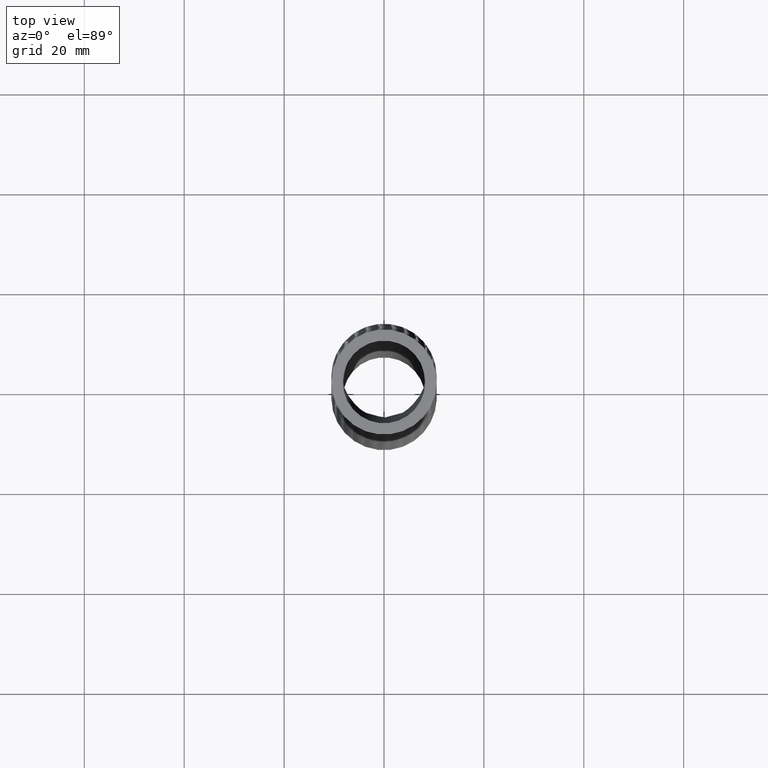
[diagram: clean part render]
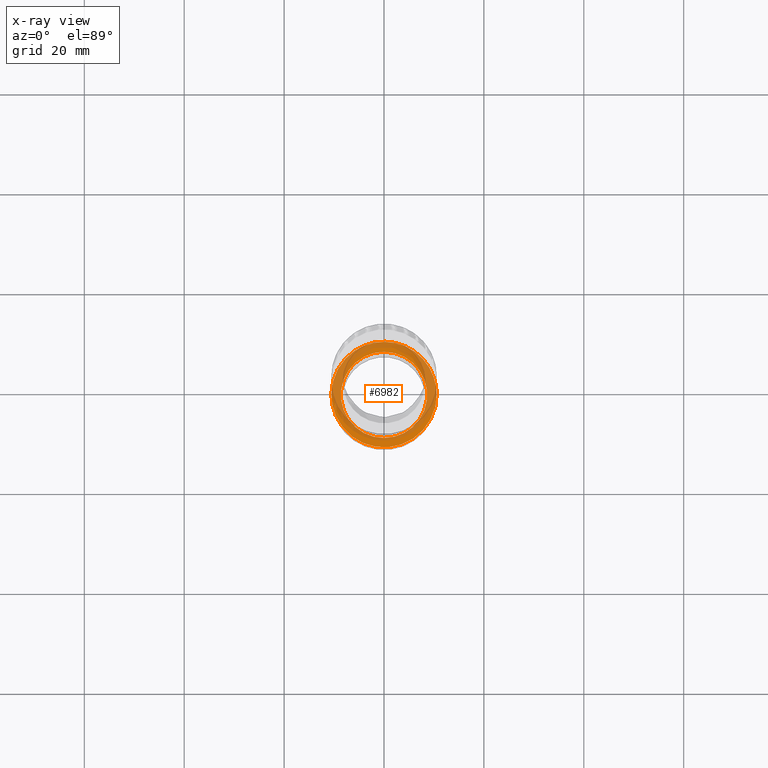
[diagram: x-ray — body ghosted, one internal face saturated and labeled with its STEP entity id]
A machine part, top view, then the same camera in x-ray: the body is ghosted and one INTERNAL B-rep face — a face not visible from any outside direction — is saturated and labeled: STEP entity #6982.
In plain terms, the highlighted planar face has unit normal (0, -0, 1).
Its self-contained STEP definition (entity closure, byte-faithful):
#414 = VERTEX_POINT ( 'NONE', #18589 ) ;
#418 = EDGE_CURVE ( 'NONE', #414, #425, #18704, .T. ) ;
#425 = VERTEX_POINT ( 'NONE', #18724 ) ;
#443 = EDGE_CURVE ( 'NONE', #425, #414, #18524, .T. ) ;
#4816 = CARTESIAN_POINT ( 'NONE',  ( 0.0000000000000000000, -0.3491710639990551800, -5.315553185463556900 ) ) ;
#4846 = CARTESIAN_POINT ( 'NONE',  ( 0.0000000000000000000, -0.009171063999055175500, -5.315553185463556900 ) ) ;
#4847 = AXIS2_PLACEMENT_3D ( 'NONE', #4846, #4907, #4906 ) ;
#4848 = CIRCLE ( 'NONE', #4847, 0.3399999999999999700 ) ;
#4849 = CARTESIAN_POINT ( 'NONE',  ( 4.163799117101000900E-017, 0.3308289360009448200, -5.315553185463556900 ) ) ;
#4906 = DIRECTION ( 'NONE',  ( 0.0000000000000000000, -1.000000000000000000, 0.0000000000000000000 ) ) ;
#4907 = DIRECTION ( 'NONE',  ( 0.0000000000000000000, -1.734723475976807100E-018, 1.000000000000000000 ) ) ;
#6959 = EDGE_LOOP ( 'NONE', ( #6960, #6961 ) ) ;
#6960 = ORIENTED_EDGE ( 'NONE', *, *, #418, .F. ) ;
#6961 = ORIENTED_EDGE ( 'NONE', *, *, #443, .F. ) ;
#6962 = EDGE_LOOP ( 'NONE', ( #6963, #6964 ) ) ;
#6963 = ORIENTED_EDGE ( 'NONE', *, *, #18904, .F. ) ;
#6964 = ORIENTED_EDGE ( 'NONE', *, *, #6979, .F. ) ;
#6979 = EDGE_CURVE ( 'NONE', #18892, #18829, #14181, .T. ) ;
#6982 = ADVANCED_FACE ( 'NONE', ( #14177, #14176 ), #14203, .T. ) ;
#14176 = FACE_BOUND ( 'NONE', #6962, .T. ) ;
#14177 = FACE_OUTER_BOUND ( 'NONE', #6959, .T. ) ;
#14178 = DIRECTION ( 'NONE',  ( 0.0000000000000000000, -1.000000000000000000, 0.0000000000000000000 ) ) ;
#14179 = DIRECTION ( 'NONE',  ( 0.0000000000000000000, -1.734723475976807100E-018, 1.000000000000000000 ) ) ;
#14180 = AXIS2_PLACEMENT_3D ( 'NONE', #14187, #14179, #14178 ) ;
#14181 = CIRCLE ( 'NONE', #14180, 0.3399999999999999700 ) ;
#14187 = CARTESIAN_POINT ( 'NONE',  ( 0.0000000000000000000, -0.009171063999055175500, -5.315553185463556900 ) ) ;
#14199 = DIRECTION ( 'NONE',  ( 0.0000000000000000000, -1.000000000000000000, -1.734723475976807100E-018 ) ) ;
#14200 = DIRECTION ( 'NONE',  ( 0.0000000000000000000, -1.734723475976807100E-018, 1.000000000000000000 ) ) ;
#14201 = CARTESIAN_POINT ( 'NONE',  ( 0.0000000000000000000, 0.4308289360009448500, -5.315553185463556900 ) ) ;
#14202 = AXIS2_PLACEMENT_3D ( 'NONE', #14201, #14200, #14199 ) ;
#14203 = PLANE ( 'NONE',  #14202 ) ;
#18518 = CARTESIAN_POINT ( 'NONE',  ( -0.4044508099036629400, 0.08752687375904459600, -5.315553185463556900 ) ) ;
#18519 = CARTESIAN_POINT ( 'NONE',  ( -0.4123830496926111900, 0.04735248237020928800, -5.315553185463555200 ) ) ;
#18520 = CARTESIAN_POINT ( 'NONE',  ( -0.4149999999999999200, 0.02040056874659865900, -5.315553185463553400 ) ) ;
#18521 = CARTESIAN_POINT ( 'NONE',  ( -0.4150000000000000400, -0.006716898360299174800, -5.315553185463551600 ) ) ;
#18524 = B_SPLINE_CURVE_WITH_KNOTS ( 'NONE', 3,
 ( #18521, #18520, #18519, #18518, #18759, #18758, #18757, #18756, #18755, #18754, #18753, #18752, #18824, #18823, #18822, #18821, #18819, #18818, #18817, #18816, #18815, #18814, #18813, #18812, #18811, #18810, #18809, #18808, #18807, #18806, #18805, #18804, #18803, #18802, #18801, #18800, #18799, #18798, #18797, #18796, #18795, #18794, #18793, #18792, #18791, #18790 ),
 .UNSPECIFIED., .F., .F.,
 ( 4, 2, 2, 1, 2, 2, 2, 2, 2, 2, 2, 2, 2, 2, 1, 2, 2, 2, 2, 2, 2, 2, 2, 4 ),
 ( 0.03300452537414134300, 0.03506674712693315400, 0.03609785800332905600, 0.03712896887972496500, 0.03816007975612086700, 0.03919119063251677600, 0.04125341238530858000, 0.04228452326170448200, 0.04331563413810038400, 0.04537785589089219500, 0.04640896676728810400, 0.04744007764368400600, 0.04950229939647582400, 0.05053341027287172600, 0.05156452114926762800, 0.05259563202566353700, 0.05362674290205944600, 0.05568896465485125700, 0.05775118640764306800, 0.05981340816043488600, 0.06084451903683079500, 0.06187562991322670400, 0.06393785166601850800, 0.06600007341881032600 ),
 .UNSPECIFIED. ) ;
#18589 = CARTESIAN_POINT ( 'NONE',  ( 0.4150000000000000400, -0.006716898360302324200, -5.315553185463572900 ) ) ;
#18683 = CARTESIAN_POINT ( 'NONE',  ( 0.1338196370977037000, -0.4009658393856636600, -5.315553185463558700 ) ) ;
#18684 = CARTESIAN_POINT ( 'NONE',  ( 0.1593125964116159400, -0.3917881290928181800, -5.315553185463557800 ) ) ;
#18685 = CARTESIAN_POINT ( 'NONE',  ( 0.1838035545057550300, -0.3801605982862669700, -5.315553185463563100 ) ) ;
#18686 = CARTESIAN_POINT ( 'NONE',  ( 0.2077856405299724800, -0.3672889120723623100, -5.315553185463564900 ) ) ;
#18687 = CARTESIAN_POINT ( 'NONE',  ( 0.2195853218385347700, -0.3601855300967235500, -5.315553185463558700 ) ) ;
#18688 = CARTESIAN_POINT ( 'NONE',  ( 0.2536006523998172200, -0.3373362361086627000, -5.315553185463556900 ) ) ;
#18689 = CARTESIAN_POINT ( 'NONE',  ( 0.2744861531702941800, -0.3200879583960537500, -5.315553185463555200 ) ) ;
#18690 = CARTESIAN_POINT ( 'NONE',  ( 0.3031901270485034000, -0.2912630753389501800, -5.315553185463556900 ) ) ;
#18691 = CARTESIAN_POINT ( 'NONE',  ( 0.3123176094933678400, -0.2811591825899336100, -5.315553185463556000 ) ) ;
#18692 = CARTESIAN_POINT ( 'NONE',  ( 0.3296631670194592500, -0.2599282602502763200, -5.315553185463553400 ) ) ;
#18693 = CARTESIAN_POINT ( 'NONE',  ( 0.3377861522118279500, -0.2489111636180513800, -5.315553185463557800 ) ) ;
#18694 = CARTESIAN_POINT ( 'NONE',  ( 0.3603353593130777500, -0.2149848402440439100, -5.315553185463558700 ) ) ;
#18695 = CARTESIAN_POINT ( 'NONE',  ( 0.3730588678288916400, -0.1910874090227761600, -5.315553185463558700 ) ) ;
#18697 = CARTESIAN_POINT ( 'NONE',  ( 0.3886501885635342300, -0.1533048130875107300, -5.315553185463557800 ) ) ;
#18698 = CARTESIAN_POINT ( 'NONE',  ( 0.3932762093665784800, -0.1403191837539575800, -5.315553185463561400 ) ) ;
#18699 = CARTESIAN_POINT ( 'NONE',  ( 0.4011554534423831800, -0.1142003221586453000, -5.315553185463563100 ) ) ;
#18700 = CARTESIAN_POINT ( 'NONE',  ( 0.4044320417009310000, -0.1010280381391188400, -5.315553185463550700 ) ) ;
#18701 = CARTESIAN_POINT ( 'NONE',  ( 0.4123171183503283000, -0.06118018586997146100, -5.315553185463551600 ) ) ;
#18702 = CARTESIAN_POINT ( 'NONE',  ( 0.4150000000000000400, -0.03417686520175025600, -5.315553185463574700 ) ) ;
#18703 = CARTESIAN_POINT ( 'NONE',  ( 0.4150000000000000400, -0.006716898360302324200, -5.315553185463572900 ) ) ;
#18704 = B_SPLINE_CURVE_WITH_KNOTS ( 'NONE', 3,
 ( #18703, #18702, #18701, #18700, #18699, #18698, #18697, #18695, #18694, #18693, #18692, #18691, #18690, #18689, #18688, #18687, #18686, #18685, #18684, #18683, #18751, #18750, #18749, #18748, #18747, #18746, #18745, #18744, #18743, #18742, #18741, #18740, #18739, #18738, #18737, #18736, #18735, #18734, #18733, #18732, #18731, #18730, #18729, #18728, #18727, #18726, #18725 ),
 .UNSPECIFIED., .F., .F.,
 ( 4, 2, 2, 2, 2, 2, 2, 2, 2, 1, 2, 2, 2, 2, 2, 2, 2, 2, 2, 2, 2, 2, 2, 4 ),
 ( 0.0000000000000000000, 0.002062782835883827800, 0.003094174253825742400, 0.004125565671767657400, 0.006188348507651487500, 0.007219739925593403300, 0.008251131343535318300, 0.01031391417941915500, 0.01134530559736107400, 0.01237669701530299200, 0.01340808843324491100, 0.01443947985118682700, 0.01650226268707066100, 0.01753365410501257800, 0.01856504552295449400, 0.02062782835883832800, 0.02165921977678024500, 0.02269061119472216100, 0.02475339403060599500, 0.02681617686648983500, 0.02784756828443175200, 0.02887895970237366900, 0.03094174253825750600, 0.03300452537414134300 ),
 .UNSPECIFIED. ) ;
#18724 = CARTESIAN_POINT ( 'NONE',  ( -0.4150000000000000400, -0.006716898360299174800, -5.315553185463551600 ) ) ;
#18725 = CARTESIAN_POINT ( 'NONE',  ( -0.4150000000000000400, -0.006716898360299174800, -5.315553185463551600 ) ) ;
#18726 = CARTESIAN_POINT ( 'NONE',  ( -0.4150000000000001500, -0.03384174350608736700, -5.315553185463557800 ) ) ;
#18727 = CARTESIAN_POINT ( 'NONE',  ( -0.4122946116208203200, -0.06138787645566514500, -5.315553185463558700 ) ) ;
#18728 = CARTESIAN_POINT ( 'NONE',  ( -0.4017166147037607400, -0.1146557300714128500, -5.315553185463560500 ) ) ;
#18729 = CARTESIAN_POINT ( 'NONE',  ( -0.3938928369178736900, -0.1405781404553786100, -5.315553185463558700 ) ) ;
#18730 = CARTESIAN_POINT ( 'NONE',  ( -0.3783068266906900500, -0.1783809587237365200, -5.315553185463557800 ) ) ;
#18731 = CARTESIAN_POINT ( 'NONE',  ( -0.3724315612367534700, -0.1908527167670537600, -5.315553185463556900 ) ) ;
#18732 = CARTESIAN_POINT ( 'NONE',  ( -0.3596087300641140300, -0.2149214264996357800, -5.315553185463556000 ) ) ;
#18733 = CARTESIAN_POINT ( 'NONE',  ( -0.3526460769825118200, -0.2265704375447284400, -5.315553185463556900 ) ) ;
#18734 = CARTESIAN_POINT ( 'NONE',  ( -0.3301376668444422900, -0.2603846908081473000, -5.315553185463557800 ) ) ;
#18735 = CARTESIAN_POINT ( 'NONE',  ( -0.3129554579179604200, -0.2814604962830862800, -5.315553185463557800 ) ) ;
#18736 = CARTESIAN_POINT ( 'NONE',  ( -0.2742301441504436700, -0.3203411537825152600, -5.315553185463556900 ) ) ;
#18737 = CARTESIAN_POINT ( 'NONE',  ( -0.2532738398457398100, -0.3375692191530132400, -5.315553185463556900 ) ) ;
#18738 = CARTESIAN_POINT ( 'NONE',  ( -0.2195350563468752300, -0.3602125053126469200, -5.315553185463556000 ) ) ;
#18739 = CARTESIAN_POINT ( 'NONE',  ( -0.2079019147305815300, -0.3672232091430462400, -5.315553185463556900 ) ) ;
#18740 = CARTESIAN_POINT ( 'NONE',  ( -0.1838421674416605400, -0.3801431489060643800, -5.315553185463556000 ) ) ;
#18741 = CARTESIAN_POINT ( 'NONE',  ( -0.1713955914483681900, -0.3860510756853104400, -5.315553185463556900 ) ) ;
#18742 = CARTESIAN_POINT ( 'NONE',  ( -0.1336813686413934900, -0.4017216889540178900, -5.315553185463557800 ) ) ;
#18743 = CARTESIAN_POINT ( 'NONE',  ( -0.1077807671484126200, -0.4096050424691497500, -5.315553185463558700 ) ) ;
#18744 = CARTESIAN_POINT ( 'NONE',  ( -0.06779752773294120400, -0.4175991803501478100, -5.315553185463557800 ) ) ;
#18745 = CARTESIAN_POINT ( 'NONE',  ( -0.05421352837501376000, -0.4196265056402201900, -5.315553185463552500 ) ) ;
#18746 = CARTESIAN_POINT ( 'NONE',  ( -0.02697328148217952000, -0.4223120452064004200, -5.315553185463555200 ) ) ;
#18747 = CARTESIAN_POINT ( 'NONE',  ( -0.01338747550161323100, -0.4229708335941588800, -5.315553185463561400 ) ) ;
#18748 = CARTESIAN_POINT ( 'NONE',  ( 0.02726996851939172600, -0.4229546185922759000, -5.315553185463561400 ) ) ;
#18749 = CARTESIAN_POINT ( 'NONE',  ( 0.05424259095255482700, -0.4203061351817597400, -5.315553185463556900 ) ) ;
#18750 = CARTESIAN_POINT ( 'NONE',  ( 0.09449727412369408900, -0.4122624938753474100, -5.315553185463556900 ) ) ;
#18751 = CARTESIAN_POINT ( 'NONE',  ( 0.1078190030549918300, -0.4089023216836080200, -5.315553185463558700 ) ) ;
#18752 = CARTESIAN_POINT ( 'NONE',  ( -0.3129778565695399100, 0.2679466033296140100, -5.315553185463557800 ) ) ;
#18753 = CARTESIAN_POINT ( 'NONE',  ( -0.3301352047113690900, 0.2469694782128524500, -5.315553185463556000 ) ) ;
#18754 = CARTESIAN_POINT ( 'NONE',  ( -0.3528703765219757300, 0.2127709226800191800, -5.315553185463556900 ) ) ;
#18755 = CARTESIAN_POINT ( 'NONE',  ( -0.3598887643158643100, 0.2009855890360726600, -5.315553185463556900 ) ) ;
#18756 = CARTESIAN_POINT ( 'NONE',  ( -0.3726337729700786000, 0.1769942328083790300, -5.315553185463556000 ) ) ;
#18757 = CARTESIAN_POINT ( 'NONE',  ( -0.3841535708850964400, 0.1524839294389498900, -5.315553185463564900 ) ) ;
#18758 = CARTESIAN_POINT ( 'NONE',  ( -0.3932523688736633800, 0.1269481935036930200, -5.315553185463558700 ) ) ;
#18759 = CARTESIAN_POINT ( 'NONE',  ( -0.4011204066892065100, 0.1008911599226356600, -5.315553185463557800 ) ) ;
#18790 = CARTESIAN_POINT ( 'NONE',  ( 0.4150000000000000400, -0.006716898360302324200, -5.315553185463572900 ) ) ;
#18791 = CARTESIAN_POINT ( 'NONE',  ( 0.4150000000000000400, 0.02073559928815341800, -5.315553185463572900 ) ) ;
#18792 = CARTESIAN_POINT ( 'NONE',  ( 0.4123182364733668500, 0.04790516701517903700, -5.315553185463558700 ) ) ;
#18793 = CARTESIAN_POINT ( 'NONE',  ( 0.4016109666810205300, 0.1016798423628300400, -5.315553185463561400 ) ) ;
#18794 = CARTESIAN_POINT ( 'NONE',  ( 0.3936732050223258900, 0.1277497099294825400, -5.315553185463556900 ) ) ;
#18795 = CARTESIAN_POINT ( 'NONE',  ( 0.3781547010201975500, 0.1652687513951753300, -5.315553185463556900 ) ) ;
#18796 = CARTESIAN_POINT ( 'NONE',  ( 0.3723709002317596200, 0.1775320691705499200, -5.315553185463552500 ) ) ;
#18797 = CARTESIAN_POINT ( 'NONE',  ( 0.3595579245924990200, 0.2015633213020939200, -5.315553185463552500 ) ) ;
#18798 = CARTESIAN_POINT ( 'NONE',  ( 0.3524856506935867800, 0.2133889552927742100, -5.315553185463558700 ) ) ;
#18799 = CARTESIAN_POINT ( 'NONE',  ( 0.3297717365310300400, 0.2474345454168488900, -5.315553185463558700 ) ) ;
#18800 = CARTESIAN_POINT ( 'NONE',  ( 0.3126067424382244500, 0.2683755971250823500, -5.315553185463552500 ) ) ;
#18801 = CARTESIAN_POINT ( 'NONE',  ( 0.2742935519756740100, 0.3067991415815911100, -5.315553185463553400 ) ) ;
#18802 = CARTESIAN_POINT ( 'NONE',  ( 0.2529202188605176300, 0.3243825000657031300, -5.315553185463563100 ) ) ;
#18803 = CARTESIAN_POINT ( 'NONE',  ( 0.2078217108328827600, 0.3545663918421179100, -5.315553185463563100 ) ) ;
#18804 = CARTESIAN_POINT ( 'NONE',  ( 0.1839612008309376400, 0.3673638333716798300, -5.315553185463556900 ) ) ;
#18805 = CARTESIAN_POINT ( 'NONE',  ( 0.1461686216788462300, 0.3830571164936396000, -5.315553185463555200 ) ) ;
#18806 = CARTESIAN_POINT ( 'NONE',  ( 0.1331947724751389200, 0.3877048679194317600, -5.315553185463556000 ) ) ;
#18807 = CARTESIAN_POINT ( 'NONE',  ( 0.1071306210797112200, 0.3956118801649508600, -5.315553185463556000 ) ) ;
#18808 = CARTESIAN_POINT ( 'NONE',  ( 0.08082221991786657500, 0.4021923852689896500, -5.315553185463556900 ) ) ;
#18809 = CARTESIAN_POINT ( 'NONE',  ( 0.05403418405887170500, 0.4061680205285456700, -5.315553185463556900 ) ) ;
#18810 = CARTESIAN_POINT ( 'NONE',  ( 0.02700377906909972100, 0.4088273622760784700, -5.315553185463556900 ) ) ;
#18811 = CARTESIAN_POINT ( 'NONE',  ( 0.01331483534696307700, 0.4094985335314382200, -5.315553185463560500 ) ) ;
#18812 = CARTESIAN_POINT ( 'NONE',  ( -0.02777131836944171700, 0.4094607511457985500, -5.315553185463560500 ) ) ;
#18813 = CARTESIAN_POINT ( 'NONE',  ( -0.05473968507848808000, 0.4067430159260816400, -5.315553185463555200 ) ) ;
#18814 = CARTESIAN_POINT ( 'NONE',  ( -0.09457962804128614000, 0.3987614323224325500, -5.315553185463556000 ) ) ;
#18815 = CARTESIAN_POINT ( 'NONE',  ( -0.1077567607113711600, 0.3954453118209780800, -5.315553185463553400 ) ) ;
#18816 = CARTESIAN_POINT ( 'NONE',  ( -0.1338997615531282200, 0.3874663939618834800, -5.315553185463553400 ) ) ;
#18817 = CARTESIAN_POINT ( 'NONE',  ( -0.1468402314900331700, 0.3828016221380332000, -5.315553185463552500 ) ) ;
#18818 = CARTESIAN_POINT ( 'NONE',  ( -0.1844875262471488700, 0.3670967116739937100, -5.315553185463555200 ) ) ;
#18819 = CARTESIAN_POINT ( 'NONE',  ( -0.2083227699403607500, 0.3542804166713123300, -5.315553185463556900 ) ) ;
#18821 = CARTESIAN_POINT ( 'NONE',  ( -0.2421843674716365500, 0.3315423151234518400, -5.315553185463557800 ) ) ;
#18822 = CARTESIAN_POINT ( 'NONE',  ( -0.2532111073682830100, 0.3233240092935648600, -5.315553185463556900 ) ) ;
#18823 = CARTESIAN_POINT ( 'NONE',  ( -0.2742924869124348000, 0.3059204909398499600, -5.315553185463557800 ) ) ;
#18824 = CARTESIAN_POINT ( 'NONE',  ( -0.2843303941814430700, 0.2967608488438484000, -5.315553185463557800 ) ) ;
#18829 = VERTEX_POINT ( 'NONE', #4816 ) ;
#18892 = VERTEX_POINT ( 'NONE', #4849 ) ;
#18904 = EDGE_CURVE ( 'NONE', #18829, #18892, #4848, .T. ) ;